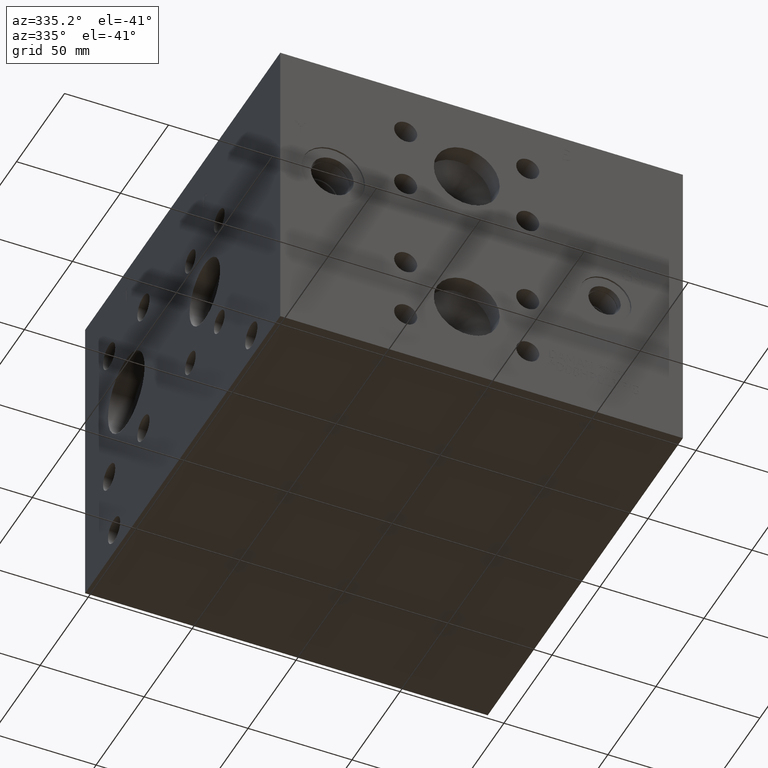
[diagram: clean part render]
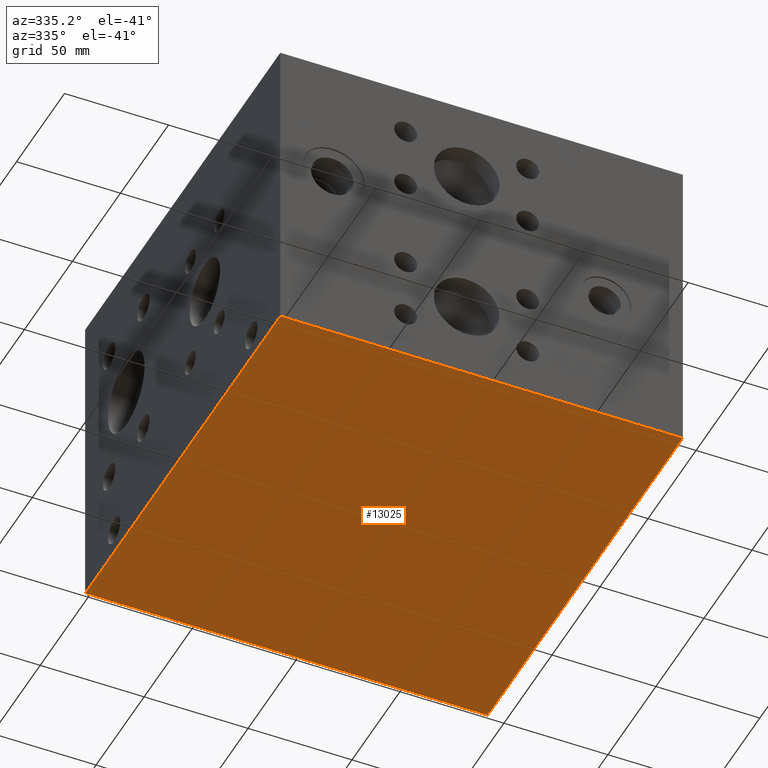
[diagram: same view with one face highlighted and labeled with its STEP entity id]
A machine part, auxiliary view. The second image highlights one B-rep face of the part: STEP entity #13025.
In plain terms, the highlighted planar face has unit normal (0, 0, 1).
Its self-contained STEP definition (entity closure, byte-faithful):
#1751=FACE_OUTER_BOUND('',#2559,.T.);
#2559=EDGE_LOOP('',(#11518,#11519,#11520,#11521));
#2892=LINE('',#19044,#4052);
#3477=LINE('',#21037,#4637);
#3536=LINE('',#21341,#4696);
#3718=LINE('',#22405,#4878);
#4052=VECTOR('',#14445,10.);
#4637=VECTOR('',#15492,10.);
#4696=VECTOR('',#15637,10.);
#4878=VECTOR('',#16841,10.);
#5220=VERTEX_POINT('',#19042);
#5221=VERTEX_POINT('',#19043);
#5694=VERTEX_POINT('',#21036);
#5768=VERTEX_POINT('',#21340);
#6650=EDGE_CURVE('',#5220,#5221,#2892,.T.);
#7347=EDGE_CURVE('',#5221,#5694,#3477,.T.);
#7446=EDGE_CURVE('',#5768,#5220,#3536,.T.);
#7932=EDGE_CURVE('',#5694,#5768,#3718,.T.);
#11518=ORIENTED_EDGE('',*,*,#6650,.F.);
#11519=ORIENTED_EDGE('',*,*,#7446,.F.);
#11520=ORIENTED_EDGE('',*,*,#7932,.F.);
#11521=ORIENTED_EDGE('',*,*,#7347,.F.);
#11897=PLANE('',#13922);
#13025=ADVANCED_FACE('',(#1751),#11897,.F.);
#13922=AXIS2_PLACEMENT_3D('',#22410,#16849,#16850);
#14445=DIRECTION('',(1.,0.,0.));
#15492=DIRECTION('',(0.,1.,0.));
#15637=DIRECTION('',(0.,-1.,0.));
#16841=DIRECTION('',(-1.,0.,0.));
#16849=DIRECTION('center_axis',(0.,0.,1.));
#16850=DIRECTION('ref_axis',(1.,0.,0.));
#19042=CARTESIAN_POINT('',(0.,0.,0.));
#19043=CARTESIAN_POINT('',(193.675,0.,0.));
#19044=CARTESIAN_POINT('',(0.,0.,0.));
#21036=CARTESIAN_POINT('',(193.675,203.2,0.));
#21037=CARTESIAN_POINT('',(193.675,0.,0.));
#21340=CARTESIAN_POINT('',(0.,203.2,0.));
#21341=CARTESIAN_POINT('',(0.,203.2,0.));
#22405=CARTESIAN_POINT('',(193.675,203.2,0.));
#22410=CARTESIAN_POINT('Origin',(96.8375,101.6,0.));